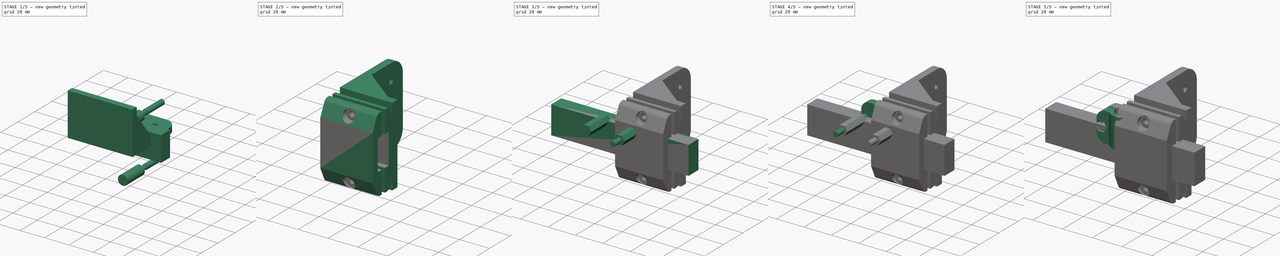
[diagram: build sequence overview — one tinted view per stage of 5, left to right]
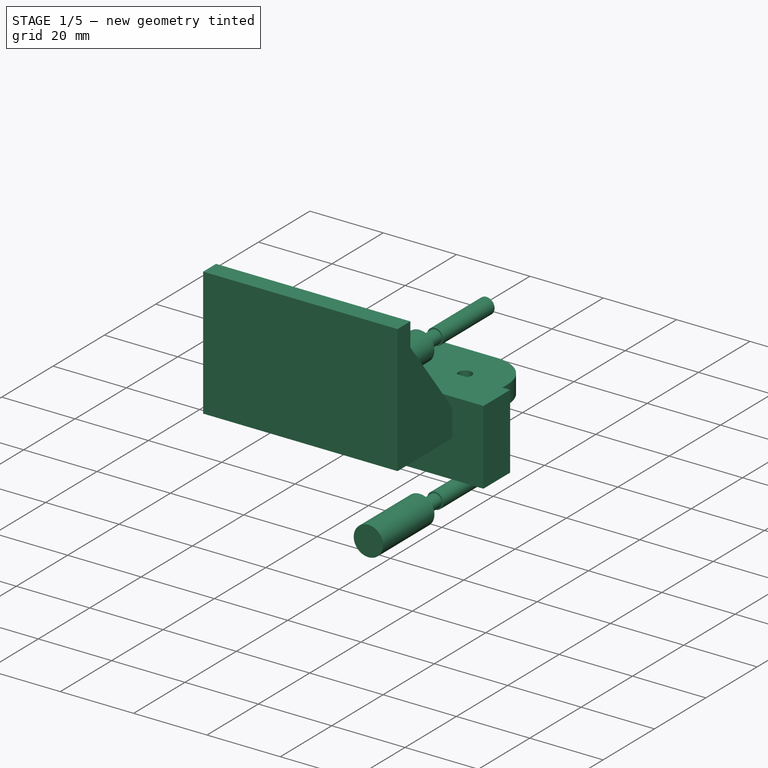
[diagram: stage 1 of 5 — iso view after this stage's code; geometry added in this stage tinted green]
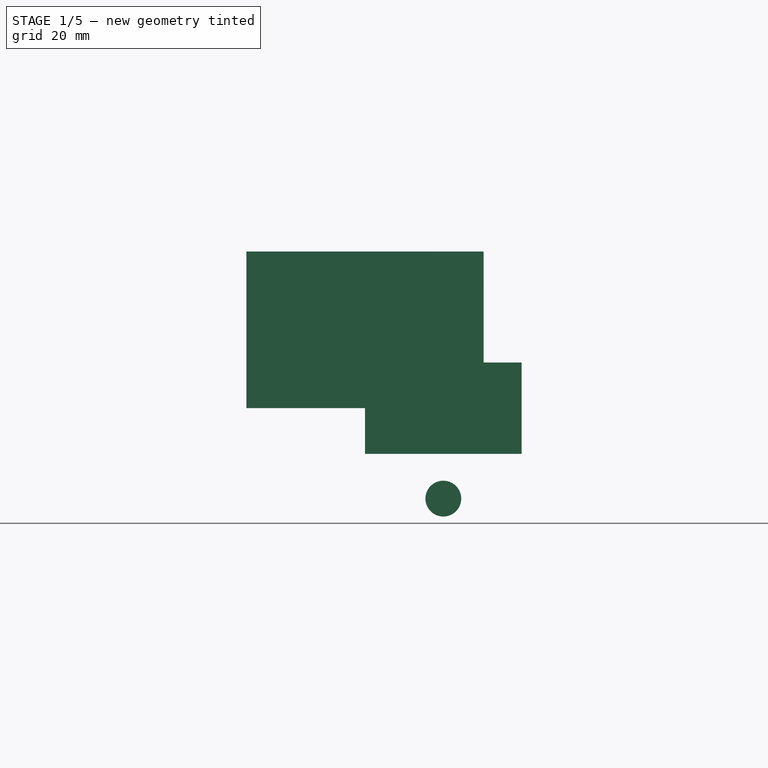
[diagram: stage 1 of 5 — front view after this stage's code; geometry added in this stage tinted green]
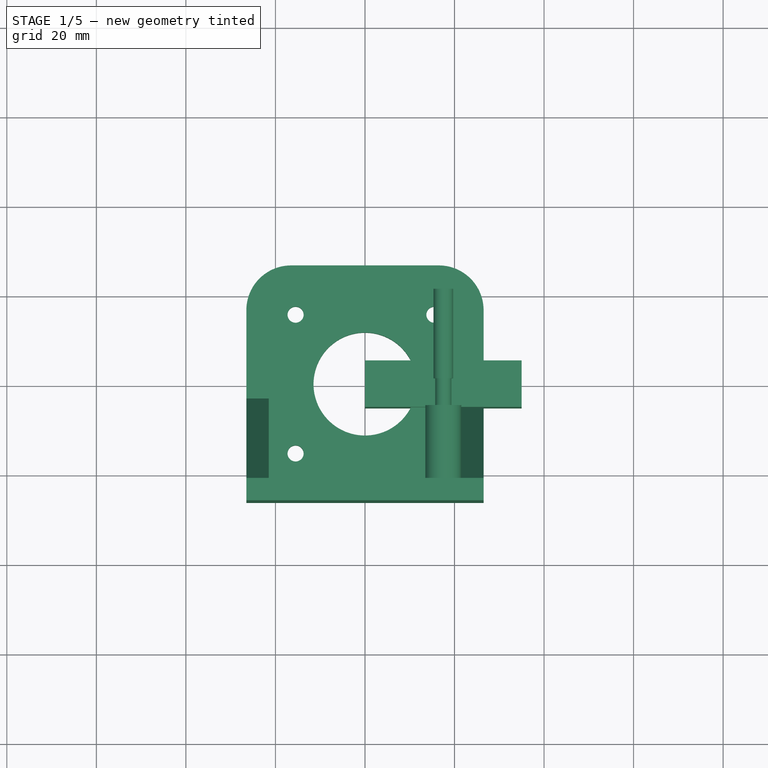
[diagram: stage 1 of 5 — top view after this stage's code; geometry added in this stage tinted green]
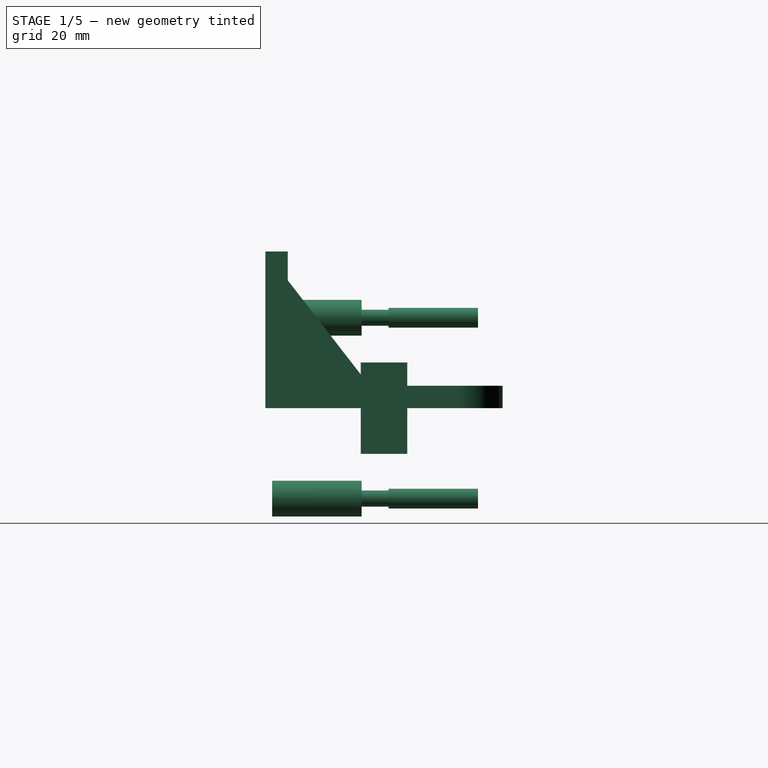
[diagram: stage 1 of 5 — right view after this stage's code; geometry added in this stage tinted green]
FCSTD DOCUMENT  (FreeCAD 0.19R)
Label: pipe_attach_v4
License: All rights reserved
LicenseURL: http://en.wikipedia.org/wiki/All_rights_reserved
objects: Part::Cylinder×7, Part::MultiFuse×7, Part::Mirroring×5, PartDesign::Body×5, Part::Box×4, Part::Cut×4, PartDesign::FeatureBase×4, Spreadsheet::Sheet×2, Part::Fillet×1, Part::RegularPolygon×1, Part::Extrusion×1, Sketcher::SketchObject×1, PartDesign::Pad×1, Part::FeaturePython×1, App::Part×1, Part::Feature×1
note: 43 computed .brp shape members not serialized (recipe doc carries the construction recipe); baked Part::Feature solids carry a one-line shape summary decoded from their .brp

FEATURE [PartDesign::Body] Body  label="profile 20x10 arrachment body"
  Group = -> [Sketch,Pad]
  Origin = -> Origin003
  Tip = -> Pad
FEATURE [Part::Cylinder] Cylinder007  label="bolt head hole"
  Angle = 360
  AttacherType = Attacher::AttachEngine3D
  Height = 20
  Placement = pos=(0,0,17) rot=(0,0,1;0rad)
  Radius = 4
  expr: Radius = <<p20x10>>.bolt_head_r
FEATURE [Part::Cylinder] Cylinder006  label="bolt hole001"
  Angle = 360
  AttacherType = Attacher::AttachEngine3D
  Height = 20
  Radius = 1.8
  expr: Radius = <<p20x10>>.bolt_hole_r
FEATURE [Part::Cylinder] Cylinder096  label="inserted hole"
  Angle = 360
  AttacherType = Attacher::AttachEngine3D
  Height = 20
  Placement = pos=(0,0,-9) rot=(0,0,1;0rad)
  Radius = 2.2
  expr: Radius = <<p20x10>>.inserter_r
FEATURE [Part::MultiFuse] Fusion004  label="bolt hole fusion"
  Placement = pos=(0,0,0) rot=(1,0,0;1.5708rad)
  Shapes = -> [Cylinder006,Cylinder007,Cylinder096]
FEATURE [Part::FeaturePython] Array  label="bolt hole array"  # Draft array (typed FeaturePython)
  Angle = 360
  ArrayType = 0
  Axis = (0,0,1)
  Base = -> Fusion004
  Center = (0,0,0)
  Count = 2
  ExpandArray = false
  Fuse = false
  IntervalAxis = (0,0,0)
  IntervalX = (100,0,0)
  IntervalY = (0,100,0)
  IntervalZ = (0,0,40.4)
  NumberCircles = 3
  NumberPolar = 5
  NumberX = 1
  NumberY = 1
  NumberZ = 2
  Placement = pos=(17.5,12,-20.2) rot=(0,0,1;0rad)
  PlacementList = 2 placements: [(0,0,0),(0,0,40.4)]
  RadialDistance = 50
  ScaleList = (2) [(1,1,1),(1,1,1)]
  Symmetry = 1
  TangentialDistance = 25
  expr: .Placement.Base.x = <<p20x10>>.attachment_size / 2
  expr: .Placement.Base.z = -.IntervalZ.z / 2
  expr: .IntervalZ.z = <<p20x10>>.profile_h + <<p20x10>>.attachment_wall * 2 + <<p20x10>>.bolt_extension_size
FEATURE [Part::Box] Box004  label="profile 20x10 extract"
  AttacherType = Attacher::AttachEngine3D
  Height = 20.4
  Length = 35
  Placement = pos=(0,-5.2,-10.2) rot=(0,0,1;0rad)
  Width = 10.4
  expr: Length = <<p20x10>>.attachment_size
  expr: Width = <<p20x10>>.profile_w
  expr: Height = <<p20x10>>.profile_h
  expr: .Placement.Base.y = -Width / 2
  expr: .Placement.Base.z = -Height / 2
FEATURE [PartDesign::Body] Body003  label="profile 20x10 arrachment clone001"
  BaseFeature = -> Cut003
  Group = -> [Clone002]
  Origin = -> Origin006
  Placement = pos=(35,0,0) rot=(0,0,1;0rad)
  Tip = -> Clone002
  expr: .Placement.Base.x = <<p20x10>>.attachment_size
FEATURE [Part::Feature] Cut004001  label="stepper mount"
  shape: bbox 53 x 53 x 35 mm, 28 faces (baked)
FEATURE [PartDesign::FeatureBase] Clone003
  BaseFeature = -> Cut004001
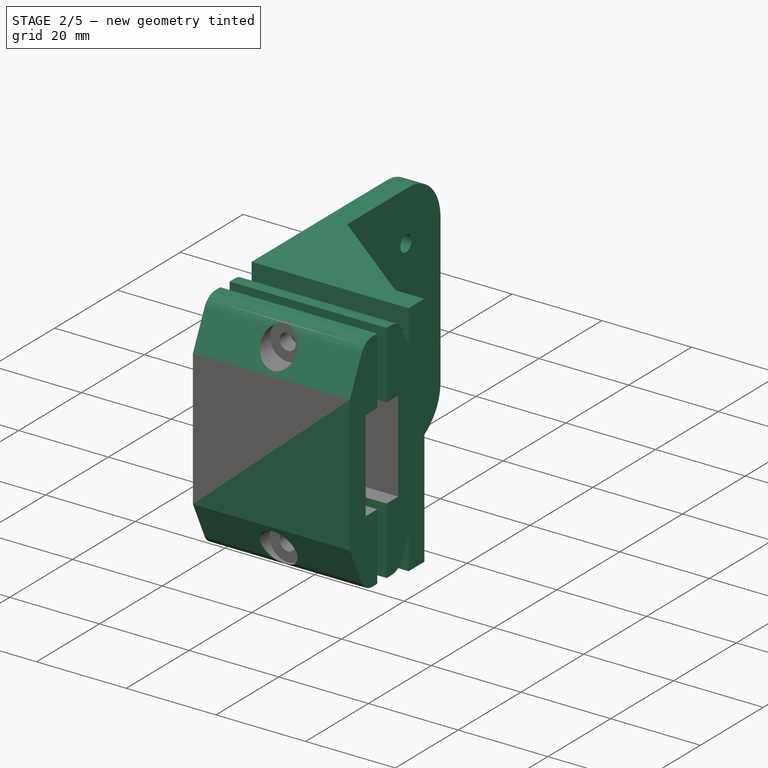
[diagram: stage 2 of 5 — iso view after this stage's code; geometry added in this stage tinted green]
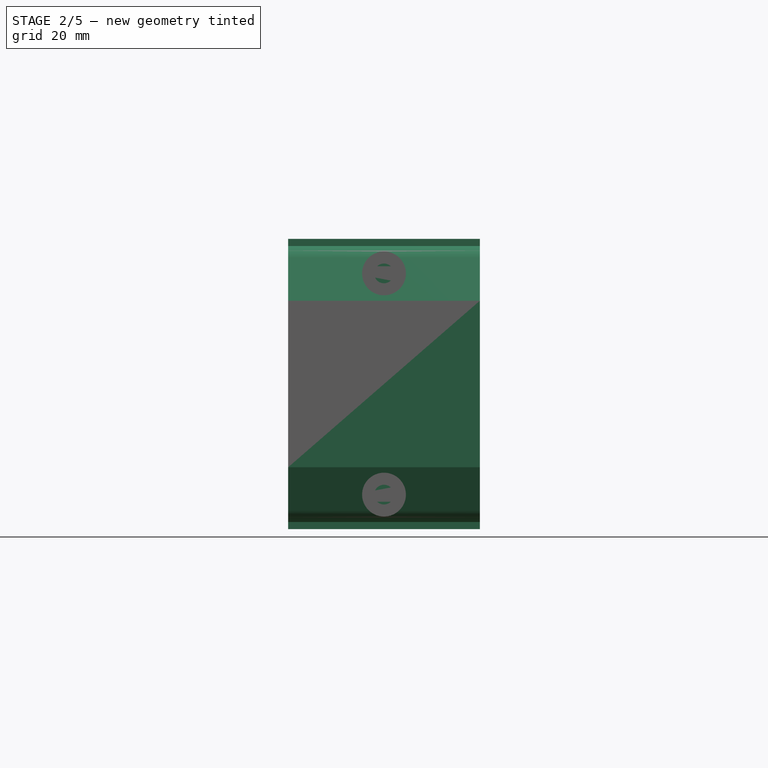
[diagram: stage 2 of 5 — front view after this stage's code; geometry added in this stage tinted green]
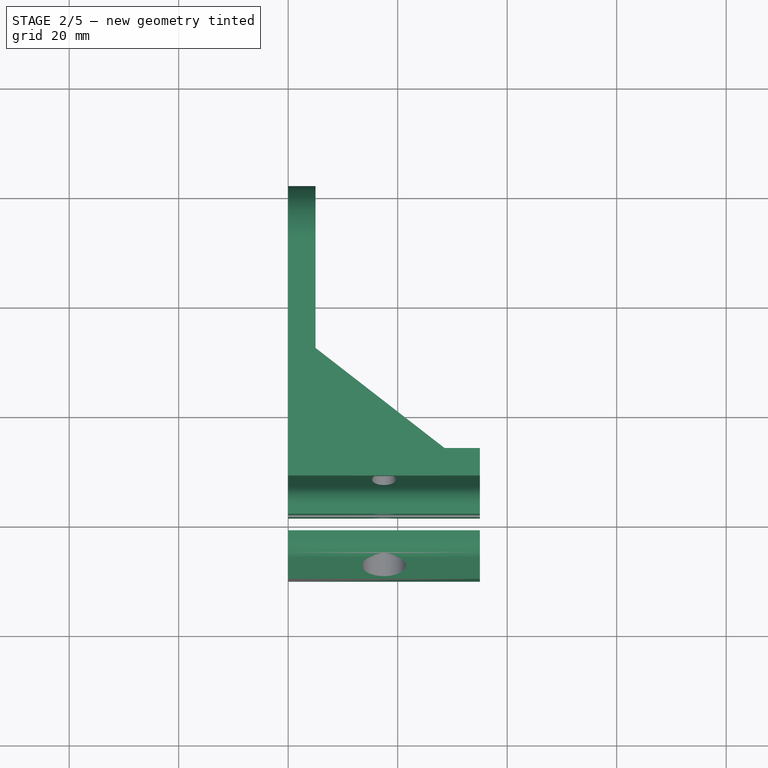
[diagram: stage 2 of 5 — top view after this stage's code; geometry added in this stage tinted green]
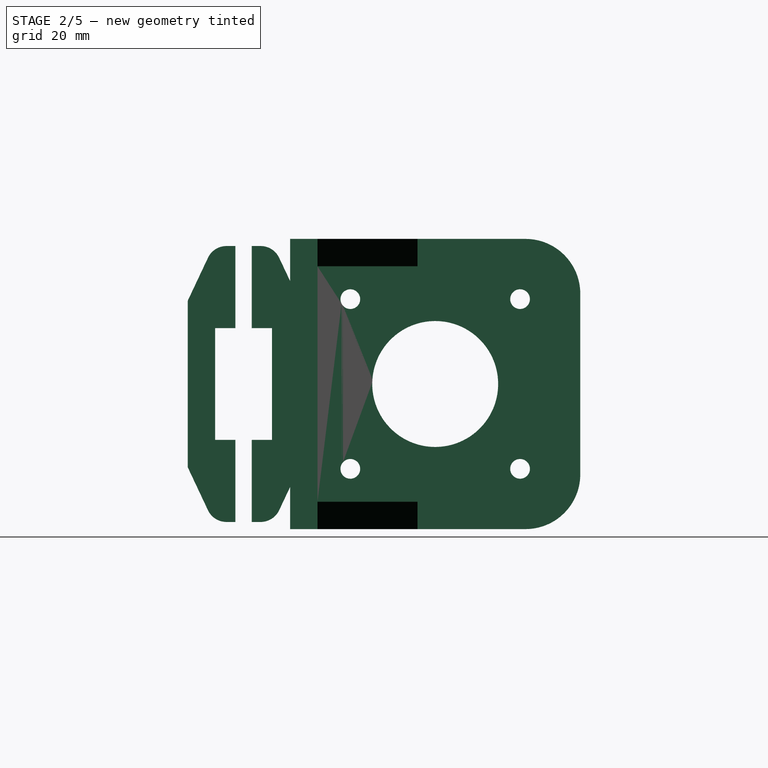
[diagram: stage 2 of 5 — right view after this stage's code; geometry added in this stage tinted green]
FEATURE [Part::Box] Box003  label="attachment gap"
  AttacherType = Attacher::AttachEngine3D
  Height = 50.4
  Length = 35
  Placement = pos=(0,-1.5,-25.2) rot=(0,0,1;0rad)
  Width = 3
  expr: .Placement.Base.x = 0
  expr: .Placement.Base.z = -Height / 2
  expr: .Placement.Base.y = -Width / 2
  expr: Width = <<p20x10>>.middle_gap_size
  expr: Length = <<p20x10>>.attachment_size
  expr: Height = <<p20x10>>.profile_h + (<<p20x10>>.attachment_wall + <<p20x10>>.bolt_extension_size) * 2
FEATURE [Sketcher::SketchObject] Sketch
  FullyConstrained = false
  MapMode = 5
  Placement = pos=(0,0,0) rot=(0.57735,0.57735,0.57735;2.0944rad)
  Support = -> [YZ_Plane003]
  expr: Constraints[27] = <<p20x10>>.bolt_extension_size
  expr: Constraints[26] = <<p20x10>>.middle_gap_size + <<p20x10>>.attachment_wall * 2
  expr: Constraints[20] = <<p20x10>>.bolt_extension_size
  expr: Constraints[18] = <<p20x10>>.middle_gap_size + <<p20x10>>.attachment_wall * 2
  expr: Constraints[11] = <<p20x10>>.profile_w + <<p20x10>>.attachment_wall * 2
  expr: Constraints[8] = <<p20x10>>.profile_h + <<p20x10>>.attachment_wall * 2
  sketch-geometry (12):
    g0: LineSegment StartX=-10.2 StartY=-15.2 StartZ=0 EndX=-6.5 EndY=-23.0553 EndZ=0
    g1: LineSegment StartX=-3.11917 StartY=-25.2 StartZ=0 EndX=3.11917 EndY=-25.2 EndZ=0
    g2: LineSegment StartX=6.5 StartY=-23.0553 StartZ=0 EndX=10.2 EndY=-15.2 EndZ=0
    g3: LineSegment StartX=-10.2 StartY=15.2 StartZ=0 EndX=-6.5 EndY=23.0553 EndZ=0
    g4: LineSegment StartX=-3.11917 StartY=25.2 StartZ=0 EndX=3.11917 EndY=25.2 EndZ=0
    g5: LineSegment StartX=6.5 StartY=23.0553 StartZ=0 EndX=10.2 EndY=15.2 EndZ=0
    g6: LineSegment StartX=-10.2 StartY=15.2 StartZ=0 EndX=-10.2 EndY=-15.2 EndZ=0
    g7: LineSegment StartX=10.2 StartY=-15.2 StartZ=0 EndX=10.2 EndY=15.2 EndZ=0
    g8: ArcOfCircle CenterX=-3.11917 CenterY=-21.4629 CenterZ=0 NormalX=0 NormalY=0 NormalZ=1 AngleXU=0 Radius=3.73709 StartAngle=3.58179 EndAngle=4.71239
    g9: ArcOfCircle CenterX=3.11917 CenterY=-21.4629 CenterZ=0 NormalX=0 NormalY=0 NormalZ=1 AngleXU=0 Radius=3.73709 StartAngle=4.71239 EndAngle=5.84299
    g10: ArcOfCircle CenterX=-3.11917 CenterY=21.4629 CenterZ=0 NormalX=0 NormalY=0 NormalZ=1 AngleXU=0 Radius=3.73709 StartAngle=1.5708 EndAngle=2.7014
    g11: ArcOfCircle CenterX=3.11917 CenterY=21.4629 CenterZ=0 NormalX=0 NormalY=0 NormalZ=1 AngleXU=0 Radius=3.73709 StartAngle=0.440194 EndAngle=1.5708
  constraints (29):
    c: Horizontal(g1)
    c: Equal(g0,g2)
    c: Horizontal(g4)
    c: Equal(g3,g5)
    c: Coincident(g6,g3)
    c: Coincident(g6,g0)
    c: Coincident(g7,g2)
    c: Coincident(g7,g5)
    c: DistanceY(g6,g6) = 30.4
    c: Equal(g7,g6)
    c: Vertical(g7)
    c: DistanceX(g3,g5) = 20.4
    c: Symmetric(g0,g2,g-2)
    c: Symmetric(g3,g0,g-1)
    c: Tangent(g0,g8) = -1.5708
    c: Tangent(g1,g8) = -1.5708
    c: Tangent(g2,g9) = -1.5708
    c: Tangent(g1,g9) = -1.5708
    c: DistanceX(g0,g2) = 13
    c: Symmetric(g2,g0,g-2)
    c: DistanceY(g1,g0) = 10
    c: Tangent(g3,g10) = 1.5708
    c: Tangent(g4,g10) = 1.5708
    c: Tangent(g5,g11) = 1.5708
    c: Tangent(g4,g11) = 1.5708
    c: Symmetric(g5,g3,g-2)
    c: DistanceX(g3,g5) = 13
    c: DistanceY(g3,g4) = 10
    c: Equal(g1,g4)
FEATURE [PartDesign::Pad] Pad
  Direction = (1,1,1)
  Length = 35
  Length2 = 100
  Placement = pos=(0,0,0) rot=(0.57735,0.57735,0.57735;2.0944rad)
  Profile = -> Sketch
  Type = 0
  expr: Length = <<p20x10>>.attachment_size
FEATURE [Part::MultiFuse] Fusion005  label="profile 20x10 arrachment extract"
  Shapes = -> [Array,Box003,Box004]
FEATURE [Part::Cut] Cut003  label="profile 20x10 arrachment cut"
  Base = -> Body
  Tool = -> Fusion005
FEATURE [App::Part] Part  label="profile 20x10 arrachment part"
  Group = -> [Body,Cut003]
  Origin = -> Origin
FEATURE [PartDesign::FeatureBase] Clone
  BaseFeature = -> Cut003
FEATURE [PartDesign::Body] Body002  label="profile 20x10 arrachment clone"
  BaseFeature = -> Cut003
  Group = -> [Clone]
  Origin = -> Origin004
  Tip = -> Clone
FEATURE [PartDesign::FeatureBase] Clone002
  BaseFeature = -> Cut003
FEATURE [PartDesign::Body] Body005  label="stepper mount clone"
  BaseFeature = -> Cut004001
  Group = -> [Clone003]
  Origin = -> Origin009
  Placement = pos=(0,35,0) rot=(0,1,0;1.5708rad)
  Tip = -> Clone003
FEATURE [Part::MultiFuse] Fusion008  label="stepper 20x10 attachment"
  Shapes = -> [Body005,Body002]
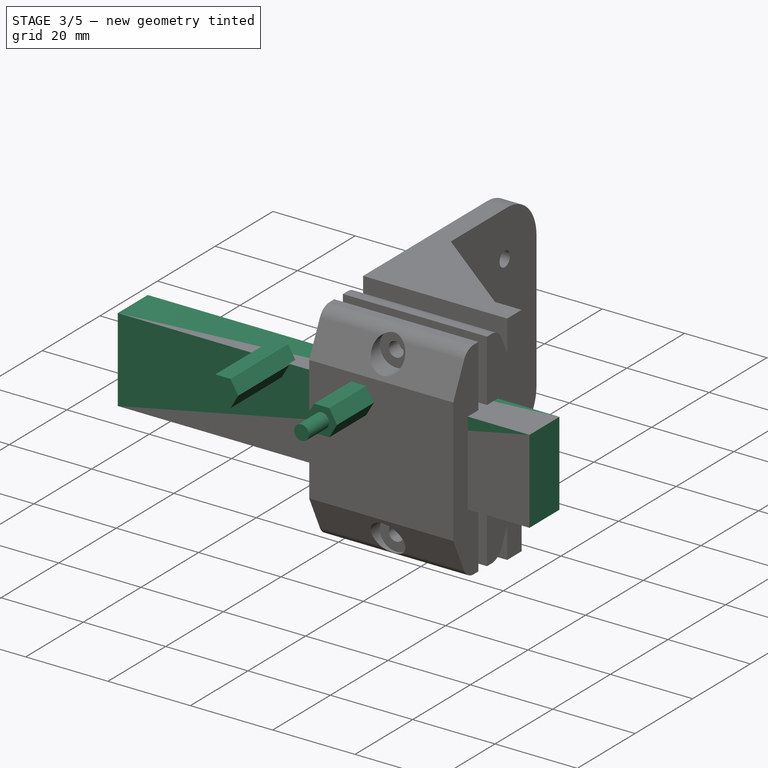
[diagram: stage 3 of 5 — iso view after this stage's code; geometry added in this stage tinted green]
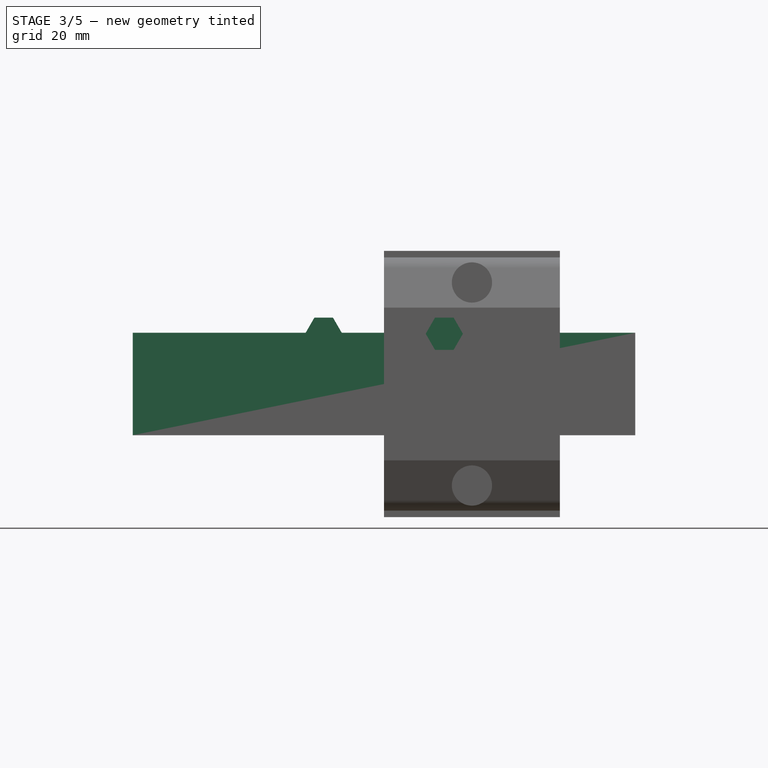
[diagram: stage 3 of 5 — front view after this stage's code; geometry added in this stage tinted green]
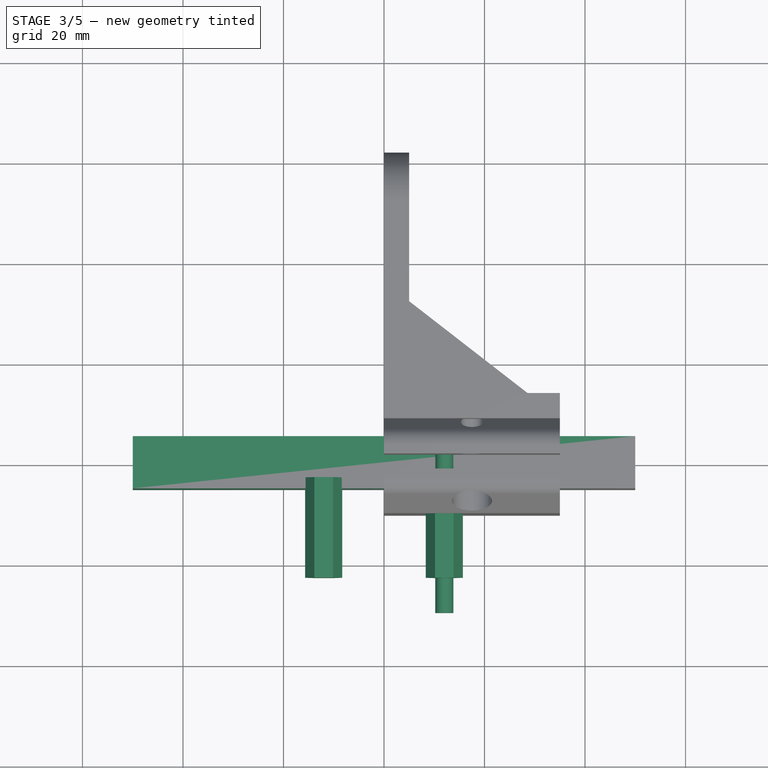
[diagram: stage 3 of 5 — top view after this stage's code; geometry added in this stage tinted green]
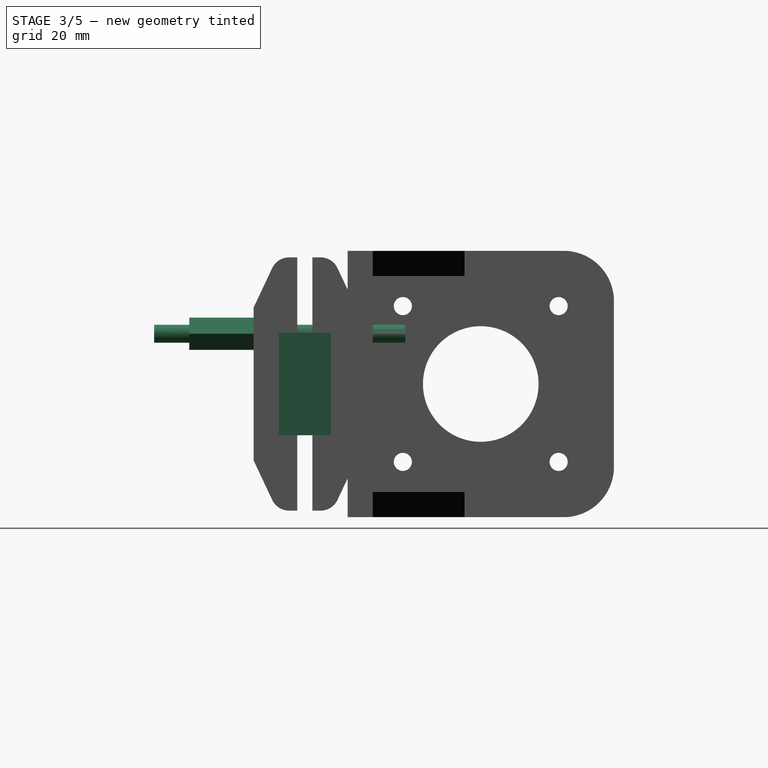
[diagram: stage 3 of 5 — right view after this stage's code; geometry added in this stage tinted green]
FEATURE [Part::Cylinder] Cylinder003  label="bolt hole"
  Angle = 360
  AttacherType = Attacher::AttachEngine3D
  Height = 50
  Placement = pos=(-12,20,10) rot=(1,0,0;1.5708rad)
  Radius = 1.8
  expr: Radius = <<p001>>.hole_r
  expr: .Placement.Base.x = -(<<p001>>.internal_r + <<p001>>.wall + <<p001>>.petal_size / 2)
  expr: .Placement.Base.z = <<p001>>.length / 2
FEATURE [Part::RegularPolygon] RegularPolygon003  label="m3 nut polygon"
  AttacherType = Attacher::AttachEngine3D
  Circumradius = 3.7
  Polygon = 6
  expr: Circumradius = <<p001>>.m3_nut_circumradius
FEATURE [Part::Extrusion] Extrude003  label="m3 nut hole"
  Base = -> RegularPolygon003
  Dir = (0,0,1)
  DirMode = 2
  FaceMakerClass = Part::FaceMakerBullseye
  LengthFwd = 20
  LengthRev = 0
  Solid = true
  Symmetric = false
FEATURE [Part::Mirroring] Part__Mirroring003  label="bolt hole (Mirror #3)"
  Base = (0,0,0)
  Normal = (1,0,0)
  Source = -> Cylinder003
FEATURE [PartDesign::FeatureBase] Clone001
  BaseFeature = -> Extrude003
FEATURE [PartDesign::Body] Body001  label="m3 nut hole petal clone"
  BaseFeature = -> Extrude003
  Group = -> [Clone001]
  Origin = -> Origin002
  Placement = pos=(-12,-3,10) rot=(1,0,0;1.5708rad)
  Tip = -> Clone001
  expr: .Placement.Base.x = -(<<p001>>.internal_r + <<p001>>.wall + <<p001>>.petal_size / 2)
  expr: .Placement.Base.y = -<<p001>>.wall
  expr: .Placement.Base.z = <<p001>>.length / 2
FEATURE [Part::Mirroring] Part__Mirroring005  label="m3 nut hole petal clone (Mirror #5)"
  Base = (0,0,0)
  Normal = (1,0,0)
  Source = -> Body001
FEATURE [Part::MultiFuse] Fusion003  label="bottom petals hole fusion"
  Shapes = -> [Part__Mirroring005,Body001]
FEATURE [Spreadsheet::Sheet] Spreadsheet001  label="p20x10"
  cells = A1=profile_h; B1(profile_h)==20.4mm; A2=profile_w; B2(profile_w)==10.4mm; A3=attachment_size; B3(attachment_size)==35mm; A4=attachment_wall; B4(attachment_wall)==5mm; A5=middle_gap_size; B5(middle_gap_size)==3mm; A6=bolt_extension_size; B6(bolt_extension_size)==10mm; A7=bolt_hole_r; B7(bolt_hole_r)==1.8mm; A8=bolt_head_r; B8(bolt_head_r)==4mm; A9=inserter_r; B9(inserter_r)==2.2mm
FEATURE [Part::Box] Box002  label="profile 20x10 mockup"
  AttacherType = Attacher::AttachEngine3D
  Height = 20.4
  Length = 100
  Placement = pos=(-50,-5.2,-10.2) rot=(0,0,1;0rad)
  Width = 10.4
  expr: .Placement.Base.z = -Height / 2
  expr: .Placement.Base.y = -Width / 2
  expr: .Placement.Base.x = -Length / 2
  expr: Height = <<p20x10>>.profile_h
  expr: Width = <<p20x10>>.profile_w
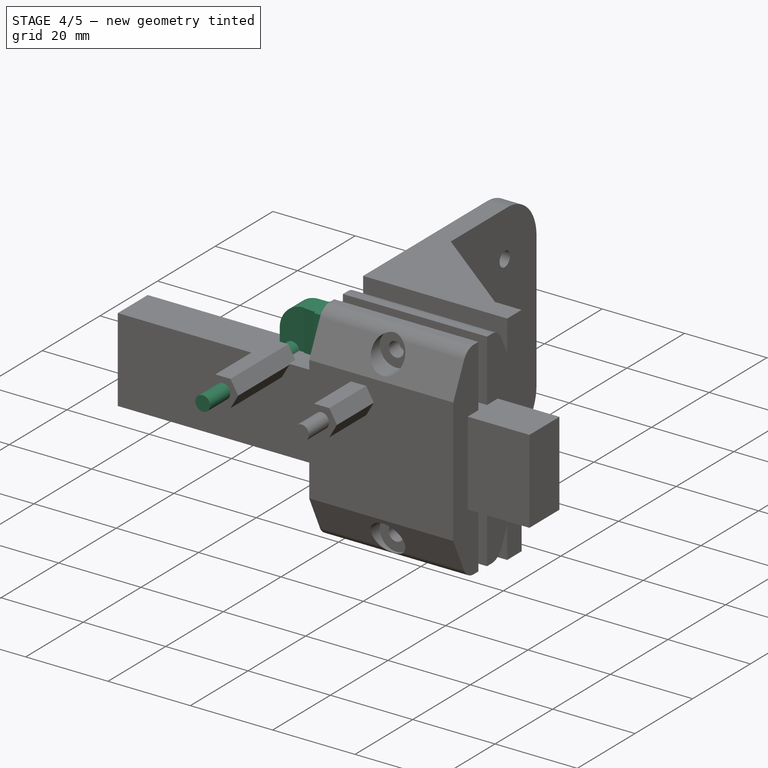
[diagram: stage 4 of 5 — iso view after this stage's code; geometry added in this stage tinted green]
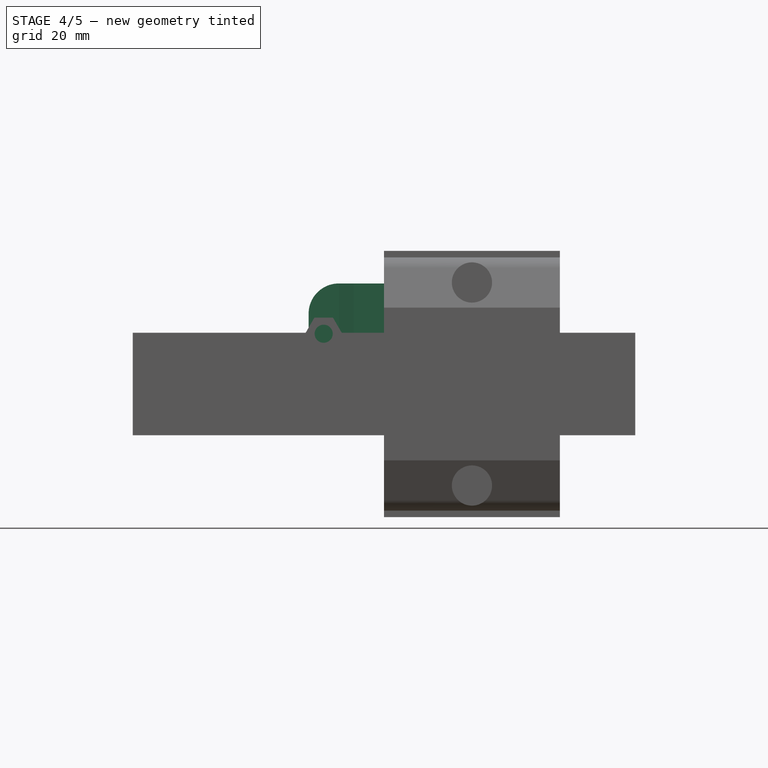
[diagram: stage 4 of 5 — front view after this stage's code; geometry added in this stage tinted green]
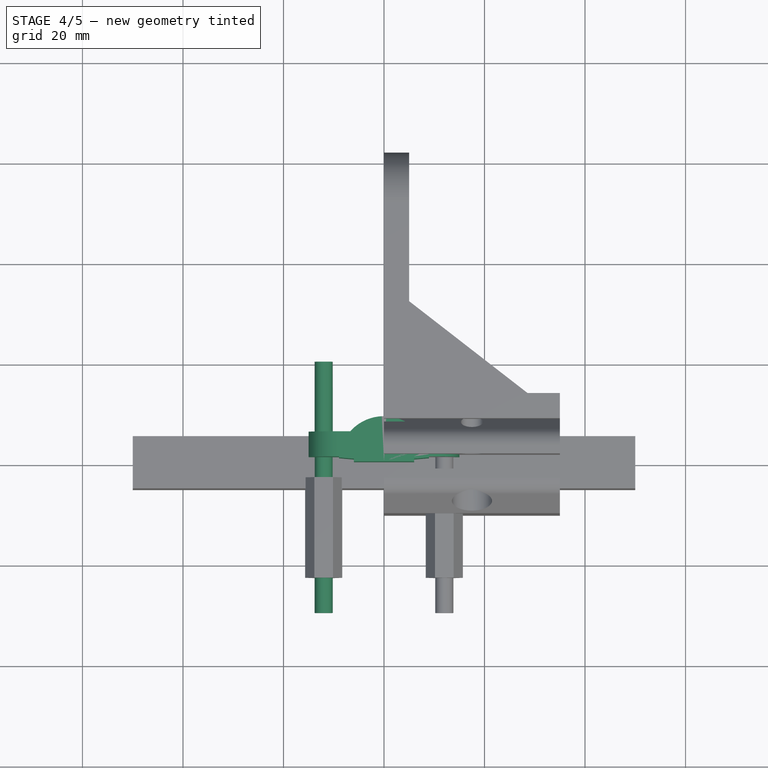
[diagram: stage 4 of 5 — top view after this stage's code; geometry added in this stage tinted green]
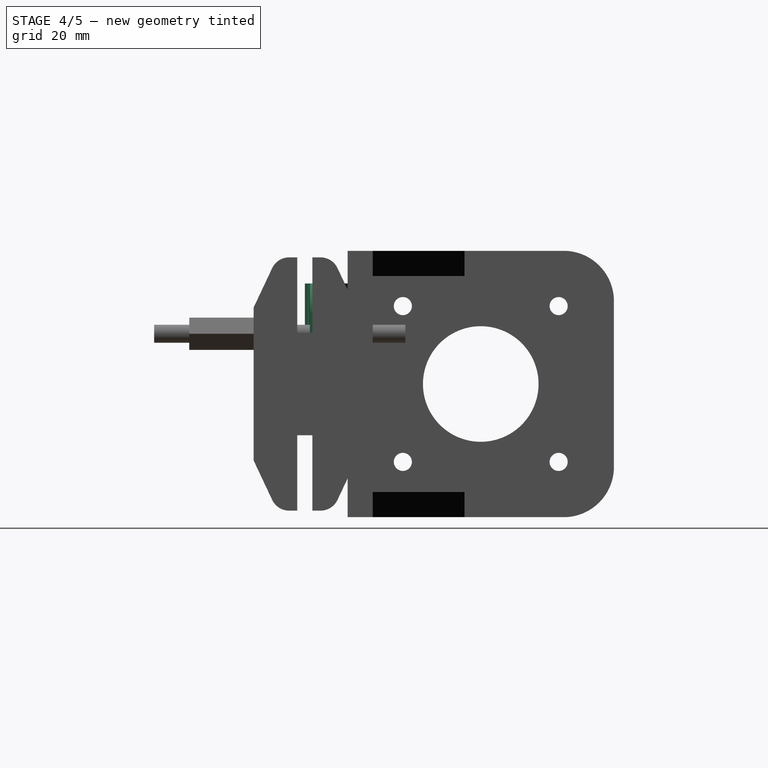
[diagram: stage 4 of 5 — right view after this stage's code; geometry added in this stage tinted green]
FEATURE [Spreadsheet::Sheet] Spreadsheet  label="p001"
  cells = A1=internal_r; B1(internal_r)=6; A2=wall; B2(wall)=3; A3=length; B3(length)=20; A4=hole_r; B4(hole_r)=1.8; A5=petal_size; B5(petal_size)=6; A6=bolt_head_nut_height; B6(bolt_head_nut_height)=2; A7=bolt_head_r; B7(bolt_head_r)=4; A8=m3_nut_circumradius; B8(m3_nut_circumradius)=3.7; A9=bolt_insert_r; B9(bolt_insert_r)=2; A10=petal_offset; B10(petal_offset)=1; A11=external_cylinder_angle_offset; B11(external_cylinder_angle_offset)=10
FEATURE [Part::Cylinder] Cylinder  label="external cylinder"
  Angle = 170
  AttacherType = Attacher::AttachEngine3D
  Height = 20
  Placement = pos=(0,0,0) rot=(0,0,1;0.087266rad)
  Radius = 9
  expr: Height = <<p001>>.length
  expr: Angle = 180 - <<p001>>.external_cylinder_angle_offset
  expr: Radius = <<p001>>.internal_r + <<p001>>.wall
  expr: .Placement.Rotation.Angle = <<p001>>.external_cylinder_angle_offset / 2
FEATURE [Part::Cylinder] Cylinder001  label="hole cylinder"
  Angle = 180
  AttacherType = Attacher::AttachEngine3D
  Height = 20
  Radius = 6
  expr: Height = <<p001>>.length
  expr: Radius = <<p001>>.internal_r
FEATURE [Part::Box] Box  label="petal cube"
  AttacherType = Attacher::AttachEngine3D
  Height = 20
  Length = 9
  Placement = pos=(-15,1,0) rot=(0,0,1;0rad)
  Width = 5
  expr: Length = <<p001>>.petal_size + <<p001>>.wall
  expr: Height = <<p001>>.length
  expr: .Placement.Base.x = -(<<p001>>.internal_r + <<p001>>.wall + <<p001>>.petal_size)
  expr: .Placement.Base.y = <<p001>>.petal_offset
  expr: Width = <<p001>>.wall + <<p001>>.bolt_head_nut_height
FEATURE [Part::Fillet] Fillet  label="petal fillet"
  Base = -> Box
  Edges = 2 edges r=6: [Edge2,Edge4]
FEATURE [Part::Mirroring] Part__Mirroring002  label="petal fillet (Mirror #3)"
  Base = (0,0,0)
  Normal = (1,0,0)
  Source = -> Fillet
FEATURE [Part::MultiFuse] Fusion001  label="half fusion"
  Shapes = -> [Fillet,Cylinder,Part__Mirroring002]
FEATURE [Part::MultiFuse] Fusion  label="hole fusion"
  Shapes = -> [Cylinder003,Cylinder001,Part__Mirroring003]
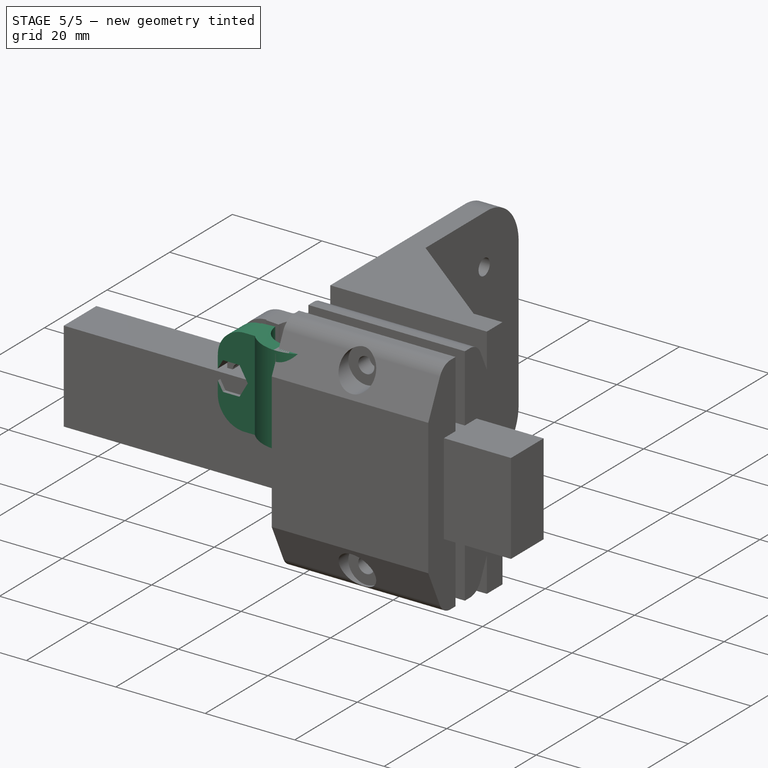
[diagram: stage 5 of 5 — iso view after this stage's code; geometry added in this stage tinted green]
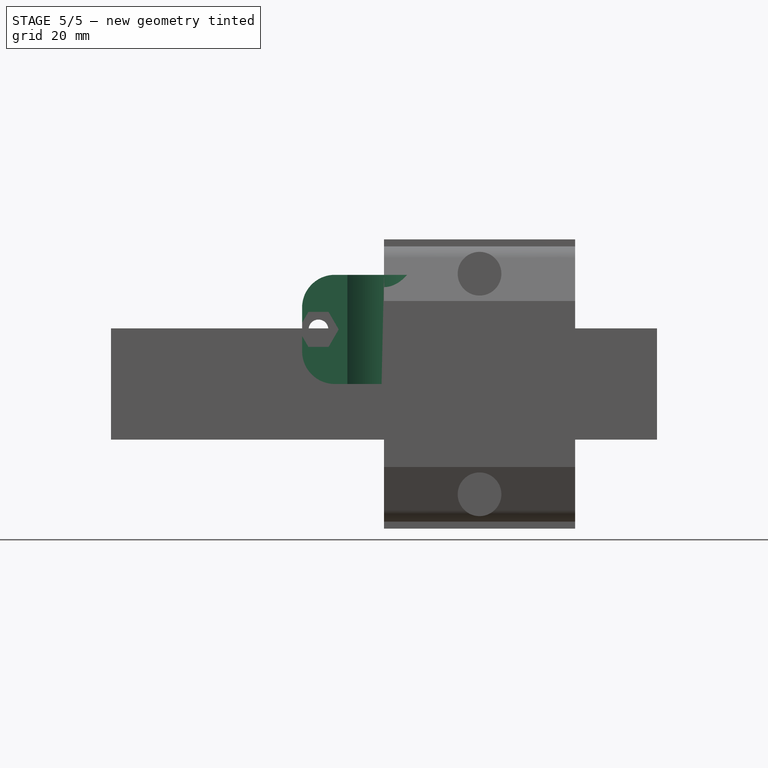
[diagram: stage 5 of 5 — front view after this stage's code; geometry added in this stage tinted green]
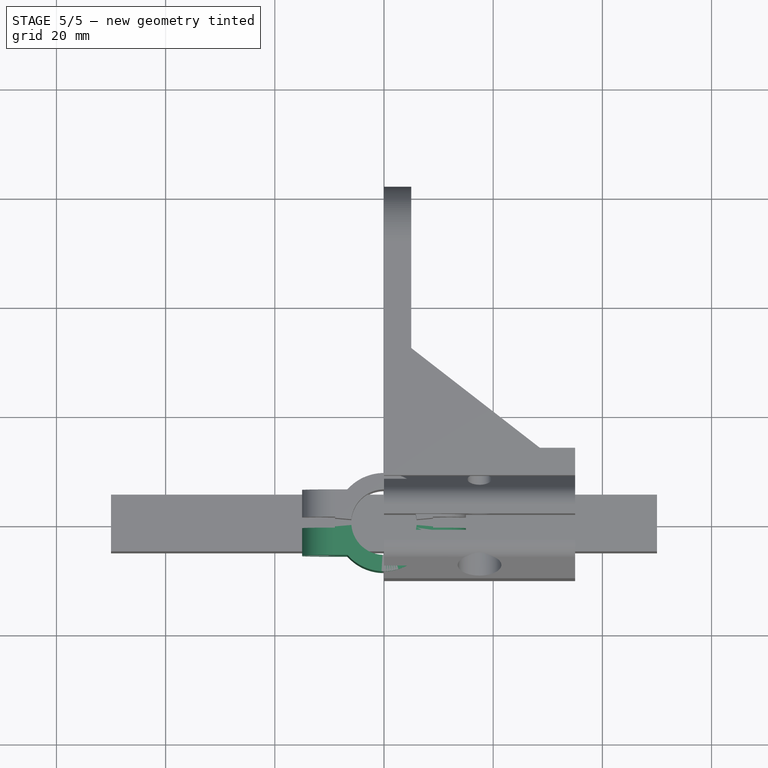
[diagram: stage 5 of 5 — top view after this stage's code; geometry added in this stage tinted green]
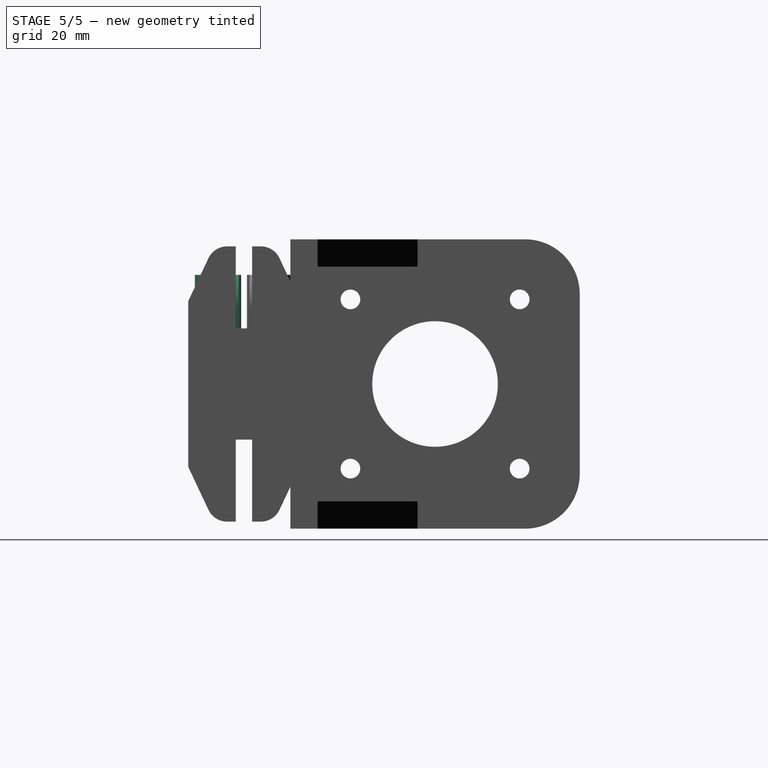
[diagram: stage 5 of 5 — right view after this stage's code; geometry added in this stage tinted green]
FEATURE [Part::Cut] Cut  label="top attach half"
  Base = -> Fusion001
  Tool = -> Fusion
FEATURE [Part::Mirroring] Part__Mirroring  label="bottom attach half (Mirror #1)"
  Base = (0,0,0)
  Normal = (0,1,0)
  Source = -> Cut
FEATURE [Part::Cylinder] Cylinder095  label="bolt head cylinder"
  Angle = 360
  AttacherType = Attacher::AttachEngine3D
  Height = 20
  Placement = pos=(-12,3,10) rot=(-1,0,0;1.5708rad)
  Radius = 4
  expr: Radius = <<p001>>.bolt_head_r
  expr: .Placement.Base.x = -(<<p001>>.internal_r + <<p001>>.wall + <<p001>>.petal_size / 2)
  expr: .Placement.Base.y = <<p001>>.wall
  expr: .Placement.Base.z = <<p001>>.length / 2
FEATURE [Part::Mirroring] Part__Mirroring004  label="bolt head cylinder (Mirror #4)"
  Base = (0,0,0)
  Normal = (1,0,0)
  Source = -> Cylinder095
FEATURE [Part::MultiFuse] Fusion002  label="top petals hole fusion"
  Shapes = -> [Part__Mirroring004,Cylinder095]
FEATURE [Part::Cut] Cut001  label="top half cut"
  Base = -> Cut
  Tool = -> Fusion002
FEATURE [Part::Cut] Cut002  label="bottom half cut"
  Base = -> Part__Mirroring
  Tool = -> Fusion003
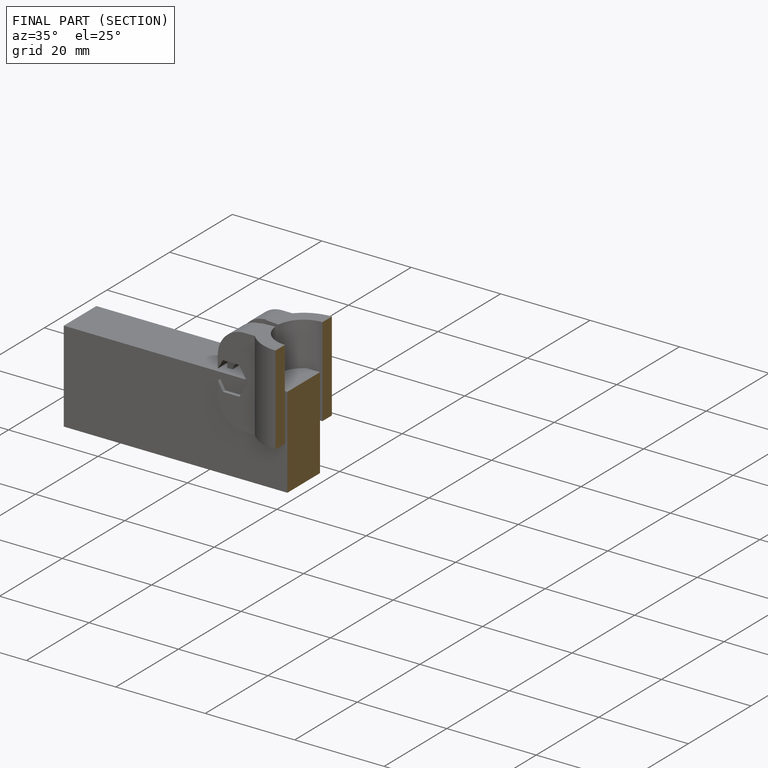
[diagram: finished part — half-section view (interior)]
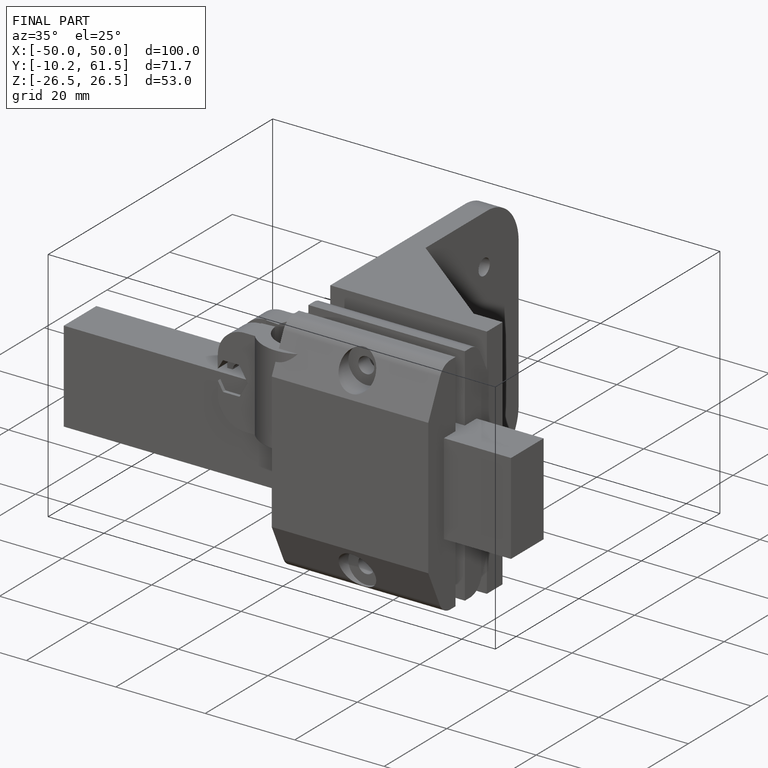
[diagram: finished part — iso view with bounding-box wireframe]
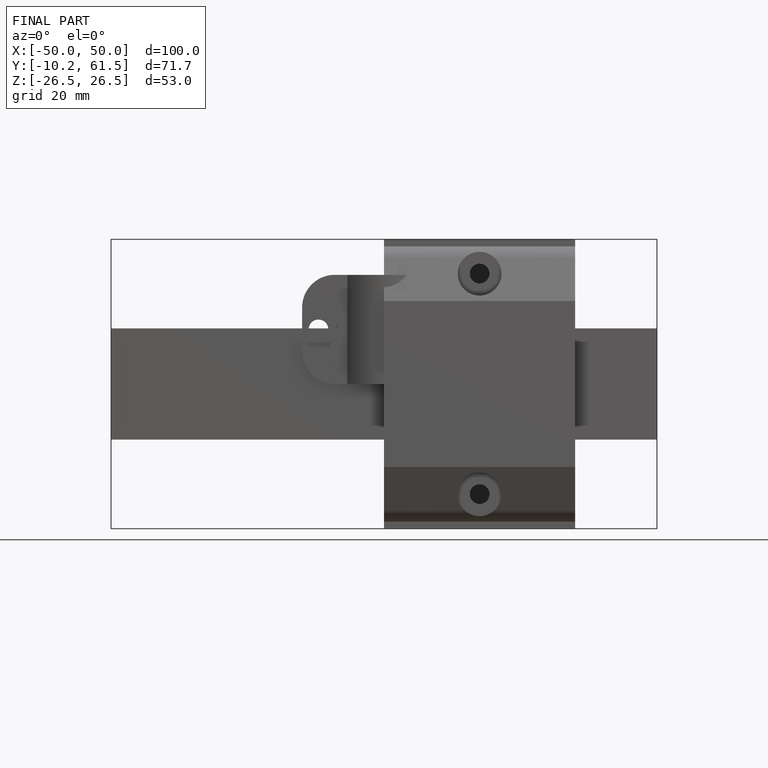
[diagram: finished part — front view with bounding-box wireframe]
